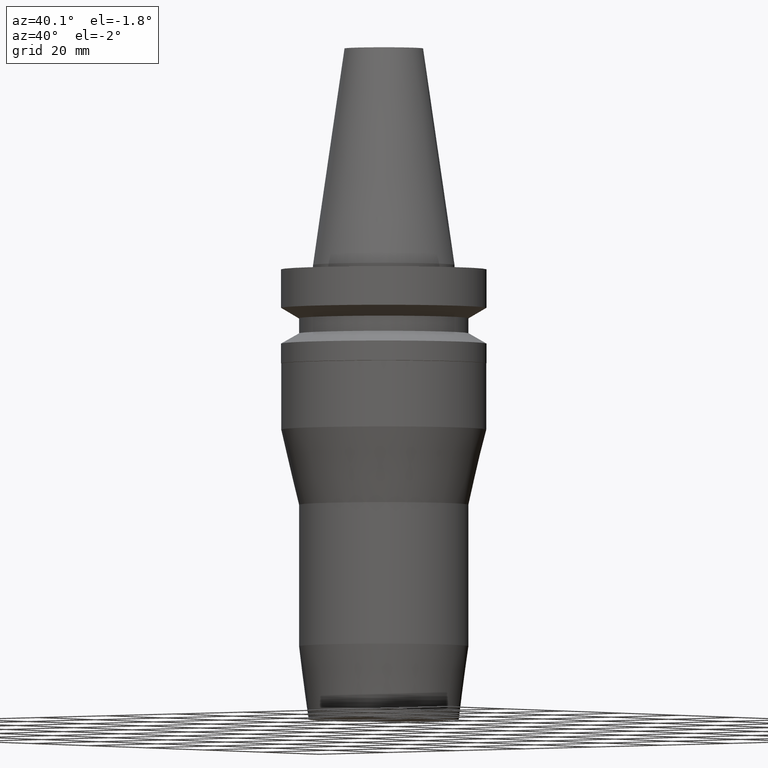
[diagram: clean part render]
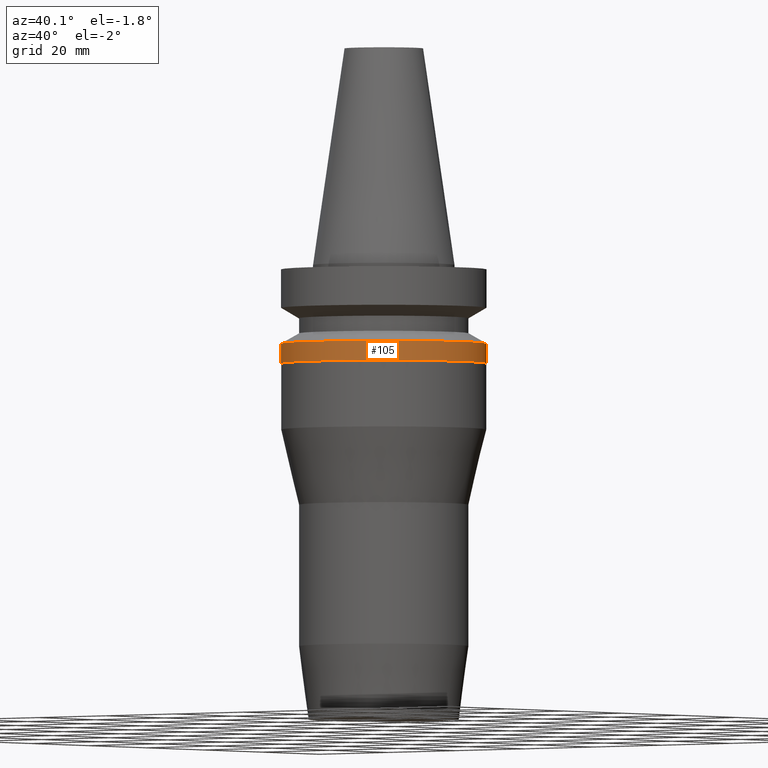
[diagram: same view with one face highlighted and labeled with its STEP entity id]
A machine part, auxiliary view. The second image highlights one B-rep face of the part: STEP entity #105.
In plain terms, the highlighted cylindrical surface (bore or boss wall) has radius 23 mm, axis along (0, 0, -1).
Its self-contained STEP definition (entity closure, byte-faithful):
#58=EDGE_CURVE('Unnamed[1]',#152,#152,#153,.T.);
#84=EDGE_CURVE('Unnamed[1]',#193,#193,#194,.T.);
#105=ADVANCED_FACE('Unnamed[1]',(#225,#226),#227,.T.);
#152=VERTEX_POINT('',#279);
#153=CIRCLE('',#280,23.0);
#193=VERTEX_POINT('',#330);
#194=CIRCLE('',#331,23.0);
#225=FACE_BOUND('',#370,.T.);
#226=FACE_BOUND('',#371,.T.);
#227=CYLINDRICAL_SURFACE('',#372,23.0);
#279=CARTESIAN_POINT('',(1.07768918324967E-015,23.0,-17.6));
#280=AXIS2_PLACEMENT_3D('',#423,#424,#425);
#330=CARTESIAN_POINT('',(1.34711147906216E-015,23.0,-22.0000000000012));
#331=AXIS2_PLACEMENT_3D('',#470,#471,#472);
#370=EDGE_LOOP('',(#506));
#371=EDGE_LOOP('',(#507));
#372=AXIS2_PLACEMENT_3D('',#508,#509,#510);
#423=CARTESIAN_POINT('',(1.07768918324967E-015,2.15537836649934E-015,-17.6));
#424=DIRECTION('',(6.12323399573677E-017,1.22464679914735E-016,-1.0));
#425=DIRECTION('',(-1.23259516440783E-032,1.0,1.22464679914735E-016));
#470=CARTESIAN_POINT('',(1.34711147906216E-015,2.69422295812433E-015,-22.0000000000012));
#471=DIRECTION('',(6.12323399573677E-017,1.22464679914735E-016,-1.0));
#472=DIRECTION('',(-1.23259516440783E-032,1.0,1.22464679914735E-016));
#506=ORIENTED_EDGE('',*,*,#84,.F.);
#507=ORIENTED_EDGE('',*,*,#58,.T.);
#508=CARTESIAN_POINT('',(1.21240033115592E-015,2.42480066231183E-015,-19.8000000000006));
#509=DIRECTION('',(6.12323399573677E-017,1.22464679914735E-016,-1.0));
#510=DIRECTION('',(-1.23259516440783E-032,1.0,1.22464679914735E-016));